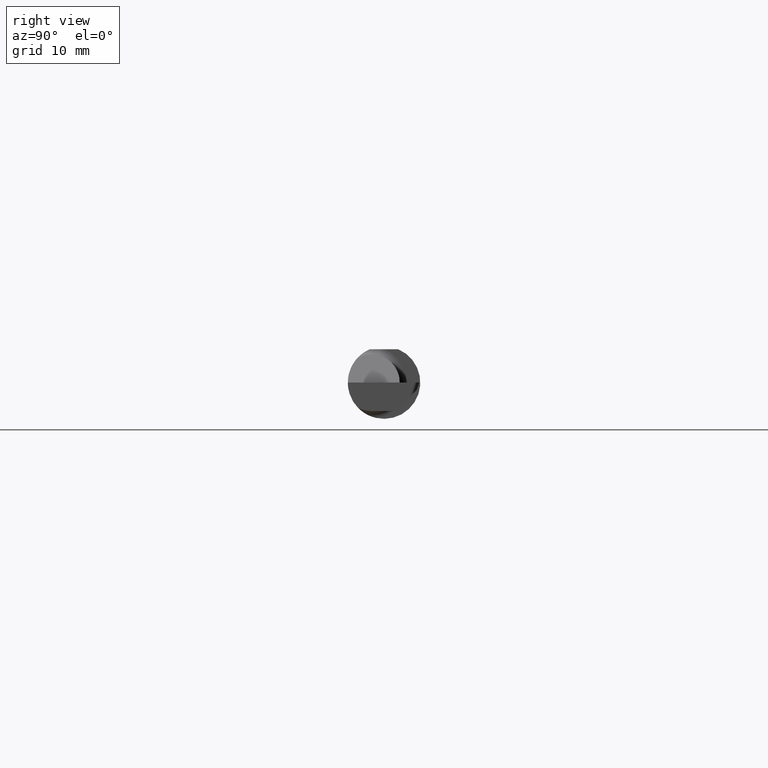
[diagram: clean part render]
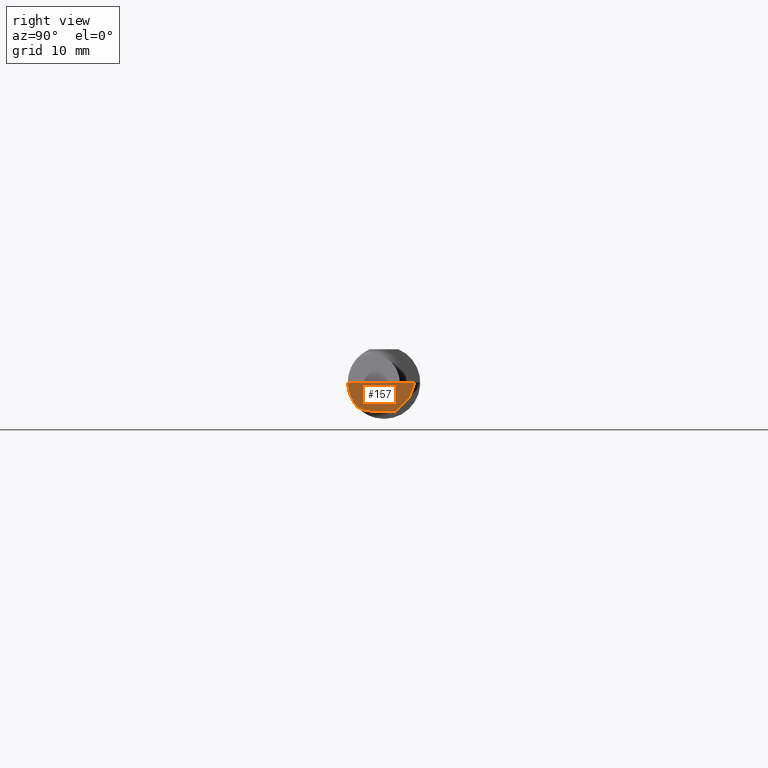
[diagram: same view with one face highlighted and labeled with its STEP entity id]
A machine part, right view. The second image highlights one B-rep face of the part: STEP entity #157.
In plain terms, the highlighted planar face has unit normal (-0.9992, 0.0174, 0.0349).
Its self-contained STEP definition (entity closure, byte-faithful):
#3 = VERTEX_POINT ( 'NONE', #697 ) ;
#10 = LINE ( 'NONE', #141, #678 ) ;
#11 = EDGE_CURVE ( 'NONE', #473, #56, #10, .T. ) ;
#19 = DIRECTION ( 'NONE',  ( -0.03701368837992469879, -0.7066222423871550973, -0.7066222423871629799 ) ) ;
#56 = VERTEX_POINT ( 'NONE', #441 ) ;
#72 = VERTEX_POINT ( 'NONE', #495 ) ;
#76 = CARTESIAN_POINT ( 'NONE',  ( 2.493546555653489705, -0.09042045454545441507, -0.08630840862739512509 ) ) ;
#83 = ORIENTED_EDGE ( 'NONE', *, *, #465, .T. ) ;
#92 = EDGE_CURVE ( 'NONE', #473, #202, #324, .T. ) ;
#110 =( BOUNDED_CURVE ( )  B_SPLINE_CURVE ( 3, ( #685, #121, #305, #811 ),
 .UNSPECIFIED., .F., .F. ) 
 B_SPLINE_CURVE_WITH_KNOTS ( ( 4, 4 ),
 ( 6.253187659403638854, 6.746650124384929725 ),
 .UNSPECIFIED. ) 
 CURVE ( )  GEOMETRIC_REPRESENTATION_ITEM ( )  RATIONAL_B_SPLINE_CURVE ( ( 1.000000000000000000, 0.9798106333074687591, 0.9798106333074687591, 1.000000000000000000 ) ) 
 REPRESENTATION_ITEM ( '' )  );
#114 = VECTOR ( 'NONE', #19, 39.37007874015748143 ) ;
#121 = CARTESIAN_POINT ( 'NONE',  ( 2.493527483980555903, -0.07607783494366274213, -0.09402249966297454575 ) ) ;
#123 = VECTOR ( 'NONE', #702, 39.37007874015748854 ) ;
#141 = CARTESIAN_POINT ( 'NONE',  ( 2.499994123636400722, 0.1058131194589338464, 0.0002257067685350752845 ) ) ;
#157 = ADVANCED_FACE ( 'NONE', ( #776 ), #644, .F. ) ;
#176 = ORIENTED_EDGE ( 'NONE', *, *, #92, .F. ) ;
#186 = CARTESIAN_POINT ( 'NONE',  ( 2.493546555653489705, -0.09042045454545441507, -0.08630840862739512509 ) ) ;
#187 = ORIENTED_EDGE ( 'NONE', *, *, #11, .T. ) ;
#202 = VERTEX_POINT ( 'NONE', #393 ) ;
#239 = EDGE_CURVE ( 'NONE', #460, #72, #421, .T. ) ;
#244 = LINE ( 'NONE', #257, #123 ) ;
#257 = CARTESIAN_POINT ( 'NONE',  ( 2.499997675007925135, 0.1064681972965584866, 0.000000000000000000 ) ) ;
#282 = CARTESIAN_POINT ( 'NONE',  ( 2.499997675007925135, 0.1064681972965584866, 0.000000000000000000 ) ) ;
#305 = CARTESIAN_POINT ( 'NONE',  ( 2.493664221452986052, -0.06028551311893198816, -0.09800000000000003153 ) ) ;
#320 = EDGE_CURVE ( 'NONE', #202, #3, #361, .T. ) ;
#324 = LINE ( 'NONE', #328, #114 ) ;
#328 = CARTESIAN_POINT ( 'NONE',  ( 2.495862202245279438, 0.04836703517574777317, -0.08936910210530095433 ) ) ;
#361 = LINE ( 'NONE', #617, #453 ) ;
#378 = DIRECTION ( 'NONE',  ( 0.03867711768363032293, 0.3253245514560478280, 0.9448111011136606230 ) ) ;
#393 = CARTESIAN_POINT ( 'NONE',  ( 2.495410105854944049, 0.03973613728104880005, -0.09800000000000001765 ) ) ;
#413 = CARTESIAN_POINT ( 'NONE',  ( 2.493976598891079810, -0.1128945894460738203, -0.06276352435079111947 ) ) ;
#421 =( BOUNDED_CURVE ( )  B_SPLINE_CURVE ( 3, ( #76, #413, #486, #670 ),
 .UNSPECIFIED., .F., .T. ) 
 B_SPLINE_CURVE_WITH_KNOTS ( ( 4, 4 ),
 ( 0.3451966888490367591, 1.107331509589553287 ),
 .UNSPECIFIED. ) 
 CURVE ( )  GEOMETRIC_REPRESENTATION_ITEM ( )  RATIONAL_B_SPLINE_CURVE ( ( 1.000000000000000000, 0.9521787881681383903, 0.9521787881681383903, 1.000000000000000000 ) ) 
 REPRESENTATION_ITEM ( '' )  );
#441 = CARTESIAN_POINT ( 'NONE',  ( 2.499984884025182375, 0.1057354023860208464, 0.000000000000000000 ) ) ;
#453 = VECTOR ( 'NONE', #732, 39.37007874015748143 ) ;
#460 = VERTEX_POINT ( 'NONE', #186 ) ;
#465 = EDGE_CURVE ( 'NONE', #460, #3, #110, .T. ) ;
#468 = ORIENTED_EDGE ( 'NONE', *, *, #803, .T. ) ;
#473 = VERTEX_POINT ( 'NONE', #637 ) ;
#486 = CARTESIAN_POINT ( 'NONE',  ( 2.494820567471968786, -0.1250000000000000000, -0.03254916765648419030 ) ) ;
#495 = CARTESIAN_POINT ( 'NONE',  ( 2.495957382595297869, -0.1250000000000000000, 0.000000000000000000 ) ) ;
#553 = ORIENTED_EDGE ( 'NONE', *, *, #239, .F. ) ;
#610 = AXIS2_PLACEMENT_3D ( 'NONE', #282, #784, #652 ) ;
#617 = CARTESIAN_POINT ( 'NONE',  ( 2.494002844043214928, -0.04088583791737589873, -0.09800000000000001765 ) ) ;
#637 = CARTESIAN_POINT ( 'NONE',  ( 2.497986945264153213, 0.08893015498921681694, -0.04880598229183145953 ) ) ;
#644 = PLANE ( 'NONE',  #610 ) ;
#652 = DIRECTION ( 'NONE',  ( 0.03490480639812536257, 0.000000000000000000, 0.9993906415863165194 ) ) ;
#656 = ORIENTED_EDGE ( 'NONE', *, *, #320, .F. ) ;
#670 = CARTESIAN_POINT ( 'NONE',  ( 2.495957382595297869, -0.1250000000000000000, 0.000000000000000000 ) ) ;
#678 = VECTOR ( 'NONE', #378, 39.37007874015748143 ) ;
#685 = CARTESIAN_POINT ( 'NONE',  ( 2.493546555653489705, -0.09042045454545441507, -0.08630840862739512509 ) ) ;
#697 = CARTESIAN_POINT ( 'NONE',  ( 2.493948486141865484, -0.04400000000000004602, -0.09800000000000001765 ) ) ;
#702 = DIRECTION ( 'NONE',  ( -0.01745240643727679133, -0.9998476951563912696, 0.000000000000000000 ) ) ;
#732 = DIRECTION ( 'NONE',  ( -0.01745240643727679480, -0.9998476951563912696, 0.000000000000000000 ) ) ;
#776 = FACE_OUTER_BOUND ( 'NONE', #798, .T. ) ;
#784 = DIRECTION ( 'NONE',  ( -0.9992386149554827179, 0.01744177490282344464, 0.03489949670250104552 ) ) ;
#798 = EDGE_LOOP ( 'NONE', ( #176, #187, #468, #553, #83, #656 ) ) ;
#803 = EDGE_CURVE ( 'NONE', #56, #72, #244, .T. ) ;
#811 = CARTESIAN_POINT ( 'NONE',  ( 2.493948486141865484, -0.04400000000000004602, -0.09800000000000001765 ) ) ;